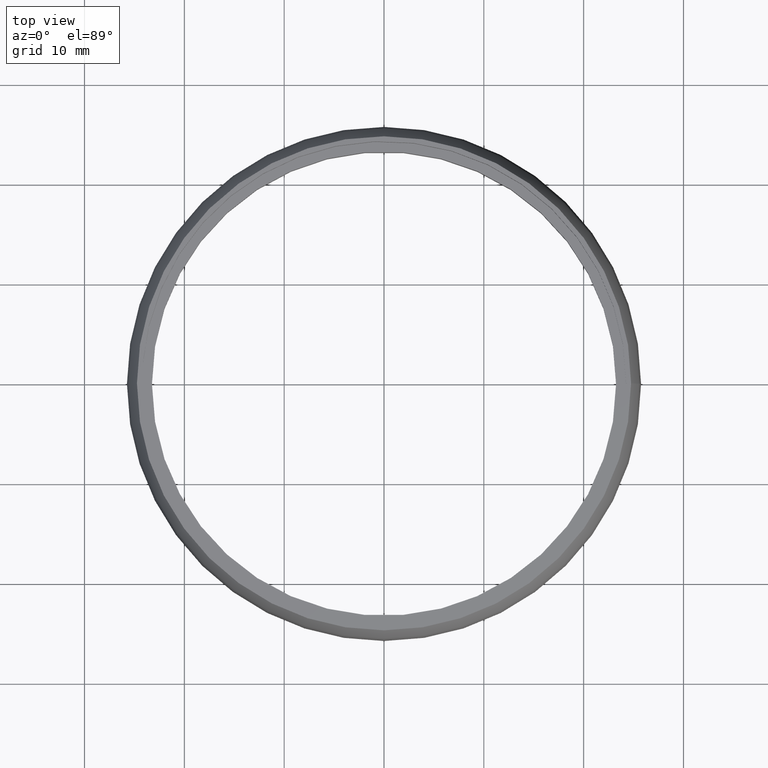
[diagram: clean part render]
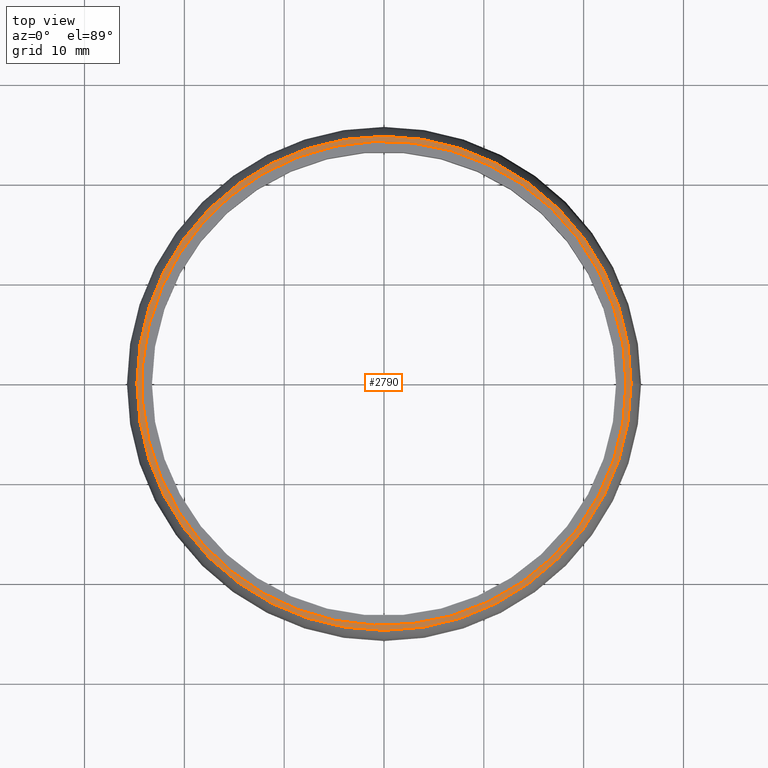
[diagram: same view with one face highlighted and labeled with its STEP entity id]
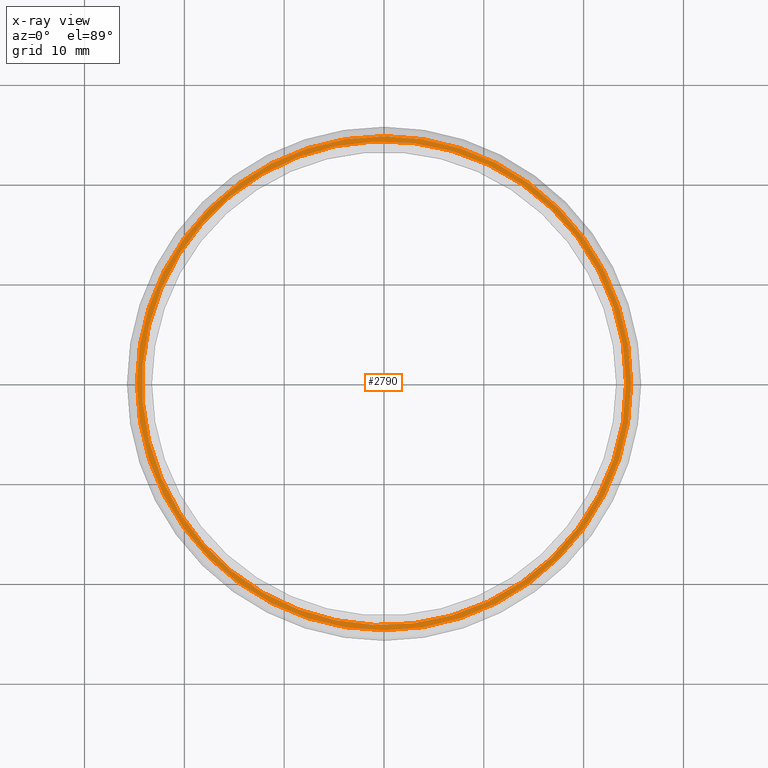
[diagram: x-ray of the same camera — body ghosted, the highlighted face saturated]
A machine part, top view. The second image highlights one B-rep face of the part: STEP entity #2790.
The next image is the same camera in x-ray: the body ghosted, the highlighted face saturated — about 0% of this face is hidden behind the body in this view.
In plain terms, the highlighted planar face has unit normal (0, 0, -1).
Its self-contained STEP definition (entity closure, byte-faithful):
#295 = EDGE_CURVE ( 'NONE', #8886, #8886, #5826, .T. ) ;
#967 = EDGE_LOOP ( 'NONE', ( #5273 ) ) ;
#1139 = VERTEX_POINT ( 'NONE', #10063 ) ;
#2260 = DIRECTION ( 'NONE',  ( -0.0000000000000000000, -0.0000000000000000000, 1.000000000000000000 ) ) ;
#2790 = ADVANCED_FACE ( 'NONE', ( #12459, #7073 ), #4665, .F. ) ;
#2995 = CARTESIAN_POINT ( 'NONE',  ( 0.0000000000000000000, 24.25000000000000000, 4.000000000000000000 ) ) ;
#3028 = CARTESIAN_POINT ( 'NONE',  ( 24.75000000000000000, 0.0000000000000000000, 4.000000000000000000 ) ) ;
#3112 = CIRCLE ( 'NONE', #9906, 24.25000000000000000 ) ;
#3170 = DIRECTION ( 'NONE',  ( 1.000000000000000000, 0.0000000000000000000, 0.0000000000000000000 ) ) ;
#3772 = EDGE_CURVE ( 'NONE', #1139, #1139, #3112, .T. ) ;
#4665 = PLANE ( 'NONE',  #12958 ) ;
#5075 = DIRECTION ( 'NONE',  ( 0.0000000000000000000, 0.0000000000000000000, -1.000000000000000000 ) ) ;
#5273 = ORIENTED_EDGE ( 'NONE', *, *, #3772, .F. ) ;
#5335 = CARTESIAN_POINT ( 'NONE',  ( 0.0000000000000000000, 0.0000000000000000000, 4.000000000000000000 ) ) ;
#5344 = ORIENTED_EDGE ( 'NONE', *, *, #295, .T. ) ;
#5826 = CIRCLE ( 'NONE', #12445, 24.75000000000000000 ) ;
#6894 = DIRECTION ( 'NONE',  ( -0.0000000000000000000, -0.0000000000000000000, 1.000000000000000000 ) ) ;
#7073 = FACE_OUTER_BOUND ( 'NONE', #8202, .T. ) ;
#8202 = EDGE_LOOP ( 'NONE', ( #5344 ) ) ;
#8886 = VERTEX_POINT ( 'NONE', #3028 ) ;
#9906 = AXIS2_PLACEMENT_3D ( 'NONE', #5335, #2260, #3170 ) ;
#10063 = CARTESIAN_POINT ( 'NONE',  ( 24.25000000000000000, 0.0000000000000000000, 4.000000000000000000 ) ) ;
#10922 = DIRECTION ( 'NONE',  ( 1.000000000000000000, 0.0000000000000000000, 0.0000000000000000000 ) ) ;
#11047 = CARTESIAN_POINT ( 'NONE',  ( 0.0000000000000000000, 0.0000000000000000000, 4.000000000000000000 ) ) ;
#12202 = DIRECTION ( 'NONE',  ( -1.000000000000000000, 0.0000000000000000000, -0.0000000000000000000 ) ) ;
#12445 = AXIS2_PLACEMENT_3D ( 'NONE', #11047, #6894, #10922 ) ;
#12459 = FACE_BOUND ( 'NONE', #967, .T. ) ;
#12958 = AXIS2_PLACEMENT_3D ( 'NONE', #2995, #5075, #12202 ) ;